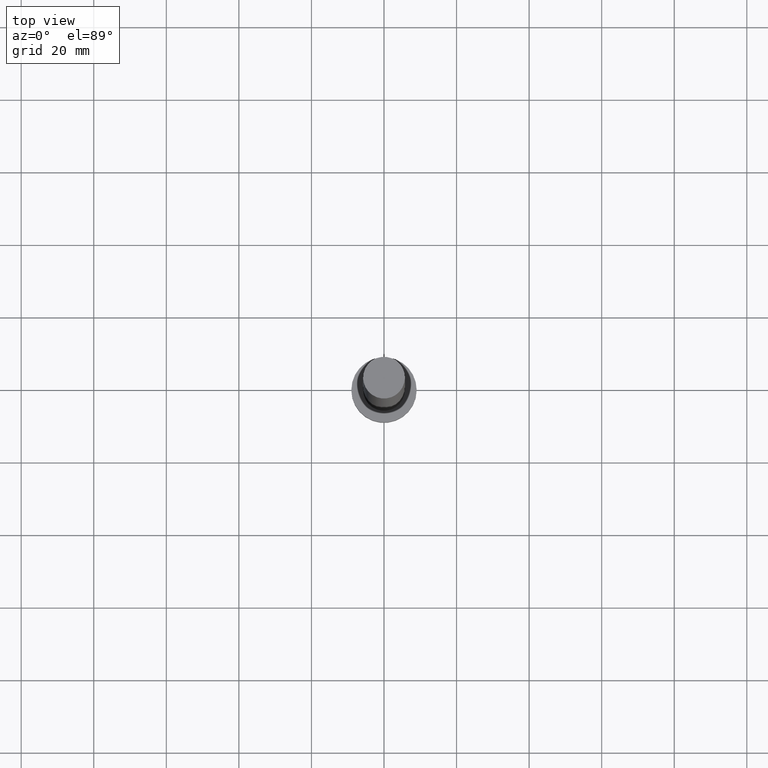
[diagram: clean part render]
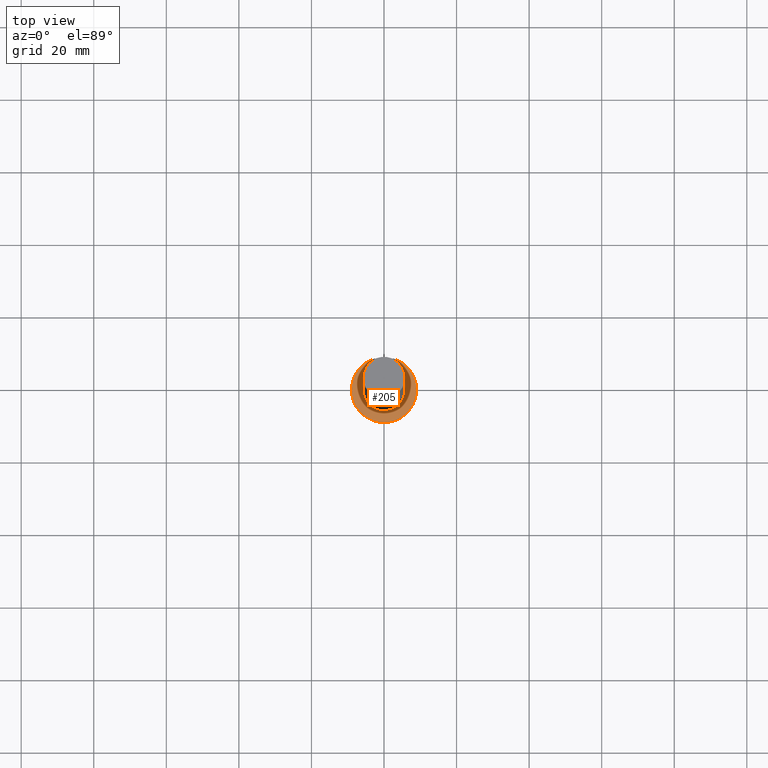
[diagram: same view with one face highlighted and labeled with its STEP entity id]
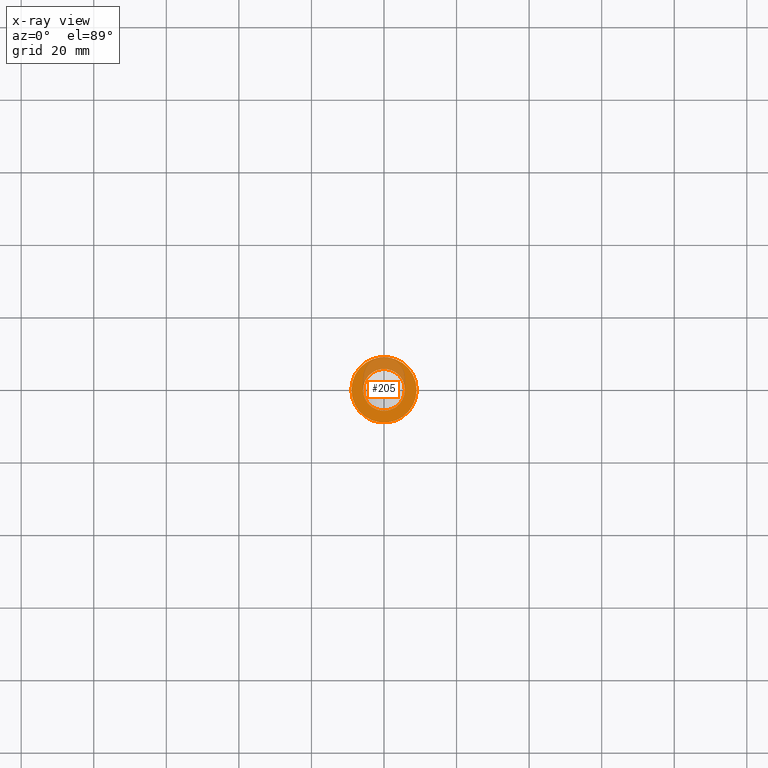
[diagram: x-ray of the same camera — body ghosted, the highlighted face saturated]
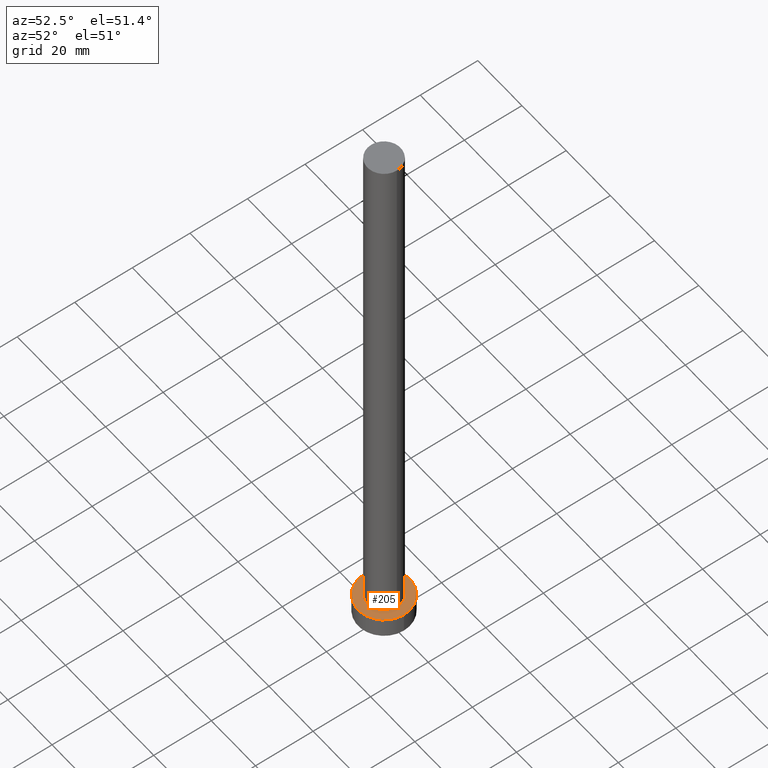
[diagram: same view with one face highlighted and labeled with its STEP entity id]
A machine part, top view. The second image highlights one B-rep face of the part: STEP entity #205.
The next image is the same camera in x-ray: the body ghosted, the highlighted face saturated — about 26% of this face is hidden behind the body in this view.
A second angle (auxiliary view) of the same face is appended — the face is thin or edge-on in the first view.
In plain terms, the highlighted planar face has unit normal (0, 0, 1).
Its self-contained STEP definition (entity closure, byte-faithful):
#6 = VERTEX_POINT ( 'NONE', #23 ) ;
#16 = DIRECTION ( 'NONE',  ( 1.000000000000000000, 0.000000000000000000, 0.000000000000000000 ) ) ;
#23 = CARTESIAN_POINT ( 'NONE',  ( 9.000000000000000000, 1.102182119232617714E-15, 7.000000000000000000 ) ) ;
#27 = AXIS2_PLACEMENT_3D ( 'NONE', #190, #168, #233 ) ;
#33 = AXIS2_PLACEMENT_3D ( 'NONE', #100, #186, #162 ) ;
#37 = EDGE_LOOP ( 'NONE', ( #251, #148 ) ) ;
#45 = CARTESIAN_POINT ( 'NONE',  ( 0.000000000000000000, 0.000000000000000000, 7.000000000000000000 ) ) ;
#73 = VERTEX_POINT ( 'NONE', #134 ) ;
#77 = EDGE_LOOP ( 'NONE', ( #93, #221 ) ) ;
#93 = ORIENTED_EDGE ( 'NONE', *, *, #135, .F. ) ;
#100 = CARTESIAN_POINT ( 'NONE',  ( 0.000000000000000000, 0.000000000000000000, 7.000000000000000000 ) ) ;
#104 = DIRECTION ( 'NONE',  ( 0.000000000000000000, 0.000000000000000000, 1.000000000000000000 ) ) ;
#105 = AXIS2_PLACEMENT_3D ( 'NONE', #232, #123, #16 ) ;
#106 = FACE_BOUND ( 'NONE', #77, .T. ) ;
#122 = DIRECTION ( 'NONE',  ( 1.000000000000000000, 0.000000000000000000, 0.000000000000000000 ) ) ;
#123 = DIRECTION ( 'NONE',  ( 0.000000000000000000, 0.000000000000000000, 1.000000000000000000 ) ) ;
#129 = CIRCLE ( 'NONE', #27, 5.750000000000000000 ) ;
#134 = CARTESIAN_POINT ( 'NONE',  ( -9.000000000000000000, 0.000000000000000000, 7.000000000000000000 ) ) ;
#135 = EDGE_CURVE ( 'NONE', #144, #161, #181, .T. ) ;
#141 = AXIS2_PLACEMENT_3D ( 'NONE', #237, #216, #255 ) ;
#142 = PLANE ( 'NONE',  #141 ) ;
#144 = VERTEX_POINT ( 'NONE', #183 ) ;
#148 = ORIENTED_EDGE ( 'NONE', *, *, #191, .T. ) ;
#161 = VERTEX_POINT ( 'NONE', #189 ) ;
#162 = DIRECTION ( 'NONE',  ( 1.000000000000000000, 0.000000000000000000, 0.000000000000000000 ) ) ;
#163 = EDGE_CURVE ( 'NONE', #161, #144, #129, .T. ) ;
#168 = DIRECTION ( 'NONE',  ( 0.000000000000000000, 0.000000000000000000, 1.000000000000000000 ) ) ;
#181 = CIRCLE ( 'NONE', #33, 5.750000000000000000 ) ;
#183 = CARTESIAN_POINT ( 'NONE',  ( -5.750000000000000000, 0.000000000000000000, 7.000000000000000000 ) ) ;
#186 = DIRECTION ( 'NONE',  ( 0.000000000000000000, 0.000000000000000000, 1.000000000000000000 ) ) ;
#187 = FACE_OUTER_BOUND ( 'NONE', #37, .T. ) ;
#189 = CARTESIAN_POINT ( 'NONE',  ( 5.750000000000000000, 7.041719095097280880E-16, 7.000000000000000000 ) ) ;
#190 = CARTESIAN_POINT ( 'NONE',  ( 0.000000000000000000, 0.000000000000000000, 7.000000000000000000 ) ) ;
#191 = EDGE_CURVE ( 'NONE', #6, #73, #206, .T. ) ;
#205 = ADVANCED_FACE ( 'NONE', ( #106, #187 ), #142, .T. ) ;
#206 = CIRCLE ( 'NONE', #105, 9.000000000000000000 ) ;
#208 = CIRCLE ( 'NONE', #215, 9.000000000000000000 ) ;
#215 = AXIS2_PLACEMENT_3D ( 'NONE', #45, #104, #122 ) ;
#216 = DIRECTION ( 'NONE',  ( 0.000000000000000000, 0.000000000000000000, 1.000000000000000000 ) ) ;
#221 = ORIENTED_EDGE ( 'NONE', *, *, #163, .F. ) ;
#232 = CARTESIAN_POINT ( 'NONE',  ( 0.000000000000000000, 0.000000000000000000, 7.000000000000000000 ) ) ;
#233 = DIRECTION ( 'NONE',  ( 1.000000000000000000, 0.000000000000000000, 0.000000000000000000 ) ) ;
#237 = CARTESIAN_POINT ( 'NONE',  ( 0.000000000000000000, 0.000000000000000000, 7.000000000000000000 ) ) ;
#248 = EDGE_CURVE ( 'NONE', #73, #6, #208, .T. ) ;
#251 = ORIENTED_EDGE ( 'NONE', *, *, #248, .T. ) ;
#255 = DIRECTION ( 'NONE',  ( 1.000000000000000000, 0.000000000000000000, -0.000000000000000000 ) ) ;